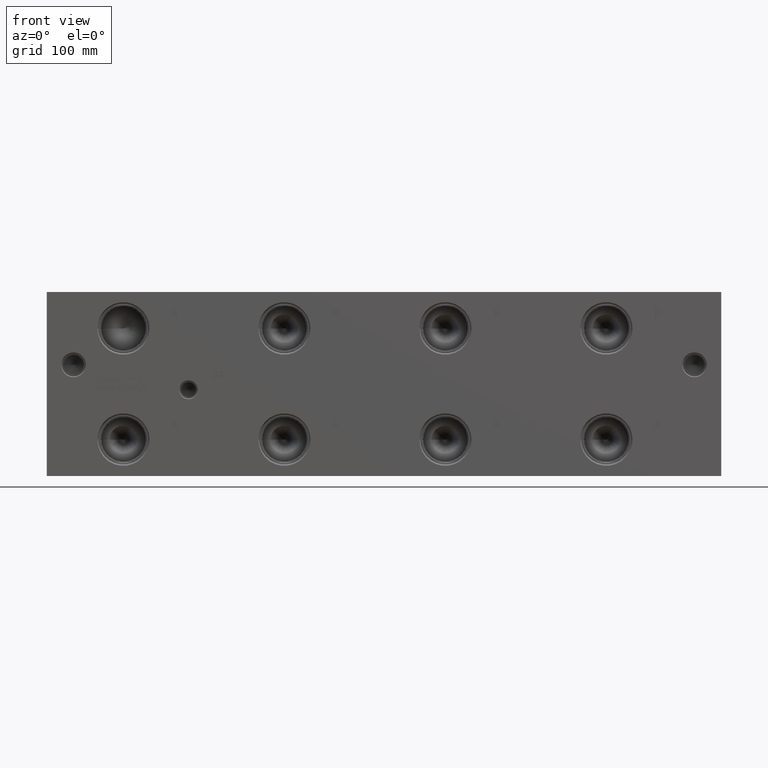
[diagram: clean part render]
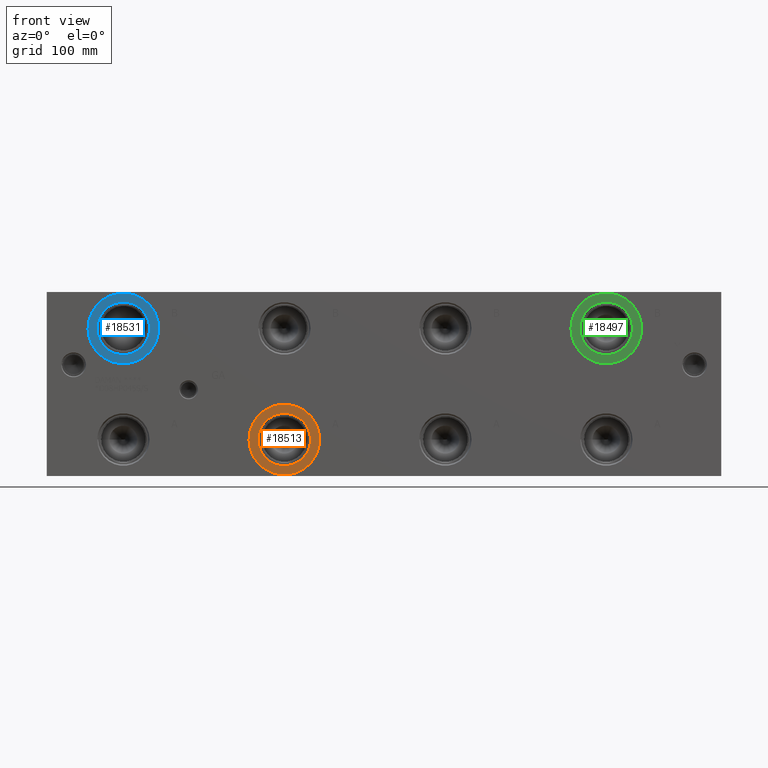
[diagram: same view with three faces highlighted in distinct colors, each labeled with its STEP entity id]
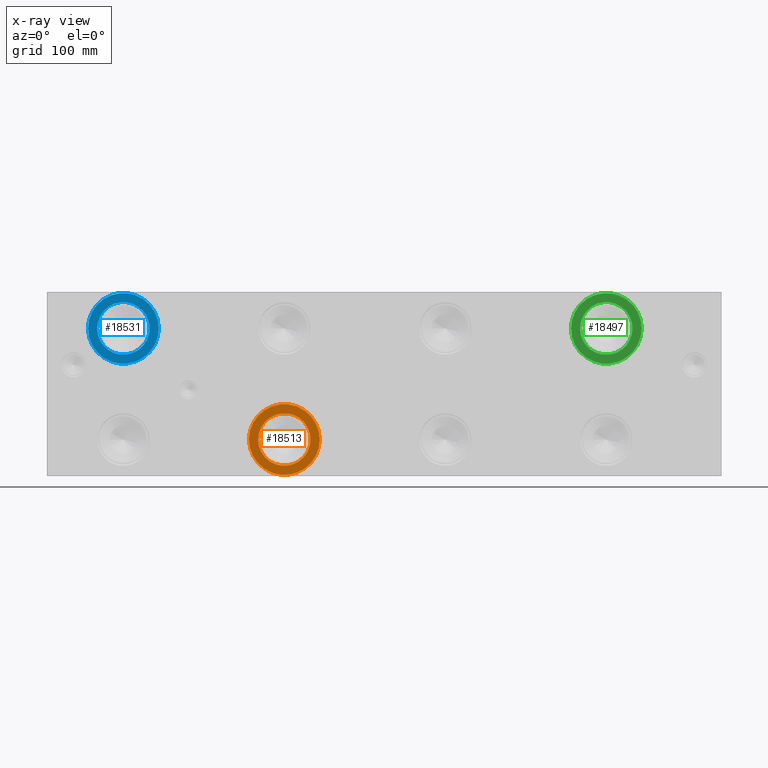
[diagram: x-ray of the same camera — body ghosted, the three highlighted faces saturated]
A machine part, front view with three faces highlighted in distinct colors.
The next image is the same camera in x-ray (body ghosted, the three faces saturated) — at least one of them is partly hidden behind the body in this view.
Their STEP definitions:

[orange] entity #18513 — the highlighted planar face has unit normal (0, -1, 0).
#978=CIRCLE('',#19779,29.2862);
#979=CIRCLE('',#19780,29.2862);
#980=CIRCLE('',#19781,21.7551);
#1647=FACE_BOUND('',#3686,.T.);
#2585=FACE_OUTER_BOUND('',#3685,.T.);
#3685=EDGE_LOOP('',(#15922,#15923));
#3686=EDGE_LOOP('',(#15924));
#8651=VERTEX_POINT('',#31842);
#8652=VERTEX_POINT('',#31843);
#8653=VERTEX_POINT('',#31846);
#11162=EDGE_CURVE('',#8651,#8652,#978,.T.);
#11163=EDGE_CURVE('',#8652,#8651,#979,.T.);
#11164=EDGE_CURVE('',#8653,#8653,#980,.T.);
#15922=ORIENTED_EDGE('',*,*,#11162,.T.);
#15923=ORIENTED_EDGE('',*,*,#11163,.T.);
#15924=ORIENTED_EDGE('',*,*,#11164,.F.);
#17032=PLANE('',#19778);
#18513=ADVANCED_FACE('',(#2585,#1647),#17032,.T.);
#19778=AXIS2_PLACEMENT_3D('',#31841,#23797,#23798);
#19779=AXIS2_PLACEMENT_3D('',#31844,#23799,#23800);
#19780=AXIS2_PLACEMENT_3D('',#31845,#23801,#23802);
#19781=AXIS2_PLACEMENT_3D('',#31847,#23803,#23804);
#23797=DIRECTION('center_axis',(0.,-1.,0.));
#23798=DIRECTION('ref_axis',(1.,0.,0.));
#23799=DIRECTION('center_axis',(0.,-1.,0.));
#23800=DIRECTION('ref_axis',(1.,0.,0.));
#23801=DIRECTION('center_axis',(0.,-1.,0.));
#23802=DIRECTION('ref_axis',(1.,0.,0.));
#23803=DIRECTION('center_axis',(0.,-1.,0.));
#23804=DIRECTION('ref_axis',(1.,0.,0.));
#31841=CARTESIAN_POINT('Origin',(196.85,0.7874,30.1752));
#31842=CARTESIAN_POINT('',(226.1362,0.7874,30.1752));
#31843=CARTESIAN_POINT('',(167.5638,0.7874,30.1752));
#31844=CARTESIAN_POINT('Origin',(196.85,0.7874,30.1752));
#31845=CARTESIAN_POINT('Origin',(196.85,0.7874,30.1752));
#31846=CARTESIAN_POINT('',(175.0949,0.7874,30.1752));
#31847=CARTESIAN_POINT('Origin',(196.85,0.7874,30.1752));

[blue] entity #18531 — the highlighted planar face has unit normal (0, 1, 0).
#996=CIRCLE('',#19814,29.2862);
#997=CIRCLE('',#19815,29.2862);
#998=CIRCLE('',#19817,21.7551);
#999=CIRCLE('',#19818,21.7551);
#1651=FACE_BOUND('',#3708,.T.);
#2603=FACE_OUTER_BOUND('',#3707,.T.);
#3707=EDGE_LOOP('',(#16003,#16004));
#3708=EDGE_LOOP('',(#16005,#16006));
#8672=VERTEX_POINT('',#31911);
#8673=VERTEX_POINT('',#31913);
#8674=VERTEX_POINT('',#31917);
#8675=VERTEX_POINT('',#31918);
#11194=EDGE_CURVE('',#8672,#8673,#996,.T.);
#11195=EDGE_CURVE('',#8673,#8672,#997,.T.);
#11196=EDGE_CURVE('',#8674,#8675,#998,.T.);
#11197=EDGE_CURVE('',#8675,#8674,#999,.T.);
#16003=ORIENTED_EDGE('',*,*,#11195,.F.);
#16004=ORIENTED_EDGE('',*,*,#11194,.F.);
#16005=ORIENTED_EDGE('',*,*,#11196,.T.);
#16006=ORIENTED_EDGE('',*,*,#11197,.T.);
#17036=PLANE('',#19816);
#18531=ADVANCED_FACE('',(#2603,#1651),#17036,.F.);
#19814=AXIS2_PLACEMENT_3D('',#31914,#23883,#23884);
#19815=AXIS2_PLACEMENT_3D('',#31915,#23885,#23886);
#19816=AXIS2_PLACEMENT_3D('',#31916,#23887,#23888);
#19817=AXIS2_PLACEMENT_3D('',#31919,#23889,#23890);
#19818=AXIS2_PLACEMENT_3D('',#31920,#23891,#23892);
#23883=DIRECTION('center_axis',(0.,1.,0.));
#23884=DIRECTION('ref_axis',(1.,0.,0.));
#23885=DIRECTION('center_axis',(0.,1.,0.));
#23886=DIRECTION('ref_axis',(1.,0.,0.));
#23887=DIRECTION('center_axis',(0.,1.,0.));
#23888=DIRECTION('ref_axis',(0.,0.,1.));
#23889=DIRECTION('center_axis',(0.,1.,0.));
#23890=DIRECTION('ref_axis',(1.,0.,0.));
#23891=DIRECTION('center_axis',(0.,1.,0.));
#23892=DIRECTION('ref_axis',(1.,0.,0.));
#31911=CARTESIAN_POINT('',(34.2138,0.7874,122.2248));
#31913=CARTESIAN_POINT('',(92.7862,0.7874,122.2248));
#31914=CARTESIAN_POINT('Origin',(63.5,0.7874,122.2248));
#31915=CARTESIAN_POINT('Origin',(63.5,0.7874,122.2248));
#31916=CARTESIAN_POINT('Origin',(85.2551,0.7874,122.2248));
#31917=CARTESIAN_POINT('',(85.2551,0.7874,122.2248));
#31918=CARTESIAN_POINT('',(41.7449,0.7874,122.2248));
#31919=CARTESIAN_POINT('Origin',(63.5,0.7874,122.2248));
#31920=CARTESIAN_POINT('Origin',(63.5,0.7874,122.2248));

[green] entity #18497 — the highlighted planar face has unit normal (0, -1, 0).
#966=CIRCLE('',#19751,29.2862);
#967=CIRCLE('',#19752,29.2862);
#968=CIRCLE('',#19753,21.7551);
#1643=FACE_BOUND('',#3666,.T.);
#2569=FACE_OUTER_BOUND('',#3665,.T.);
#3665=EDGE_LOOP('',(#15854,#15855));
#3666=EDGE_LOOP('',(#15856));
#8635=VERTEX_POINT('',#31786);
#8636=VERTEX_POINT('',#31787);
#8637=VERTEX_POINT('',#31790);
#11138=EDGE_CURVE('',#8635,#8636,#966,.T.);
#11139=EDGE_CURVE('',#8636,#8635,#967,.T.);
#11140=EDGE_CURVE('',#8637,#8637,#968,.T.);
#15854=ORIENTED_EDGE('',*,*,#11138,.T.);
#15855=ORIENTED_EDGE('',*,*,#11139,.T.);
#15856=ORIENTED_EDGE('',*,*,#11140,.F.);
#17028=PLANE('',#19750);
#18497=ADVANCED_FACE('',(#2569,#1643),#17028,.T.);
#19750=AXIS2_PLACEMENT_3D('',#31785,#23729,#23730);
#19751=AXIS2_PLACEMENT_3D('',#31788,#23731,#23732);
#19752=AXIS2_PLACEMENT_3D('',#31789,#23733,#23734);
#19753=AXIS2_PLACEMENT_3D('',#31791,#23735,#23736);
#23729=DIRECTION('center_axis',(0.,-1.,0.));
#23730=DIRECTION('ref_axis',(1.,0.,0.));
#23731=DIRECTION('center_axis',(0.,-1.,0.));
#23732=DIRECTION('ref_axis',(1.,0.,0.));
#23733=DIRECTION('center_axis',(0.,-1.,0.));
#23734=DIRECTION('ref_axis',(1.,0.,0.));
#23735=DIRECTION('center_axis',(0.,-1.,0.));
#23736=DIRECTION('ref_axis',(1.,0.,0.));
#31785=CARTESIAN_POINT('Origin',(463.55,0.7874,122.2248));
#31786=CARTESIAN_POINT('',(492.8362,0.7874,122.2248));
#31787=CARTESIAN_POINT('',(434.2638,0.7874,122.2248));
#31788=CARTESIAN_POINT('Origin',(463.55,0.7874,122.2248));
#31789=CARTESIAN_POINT('Origin',(463.55,0.7874,122.2248));
#31790=CARTESIAN_POINT('',(441.7949,0.7874,122.2248));
#31791=CARTESIAN_POINT('Origin',(463.55,0.7874,122.2248));